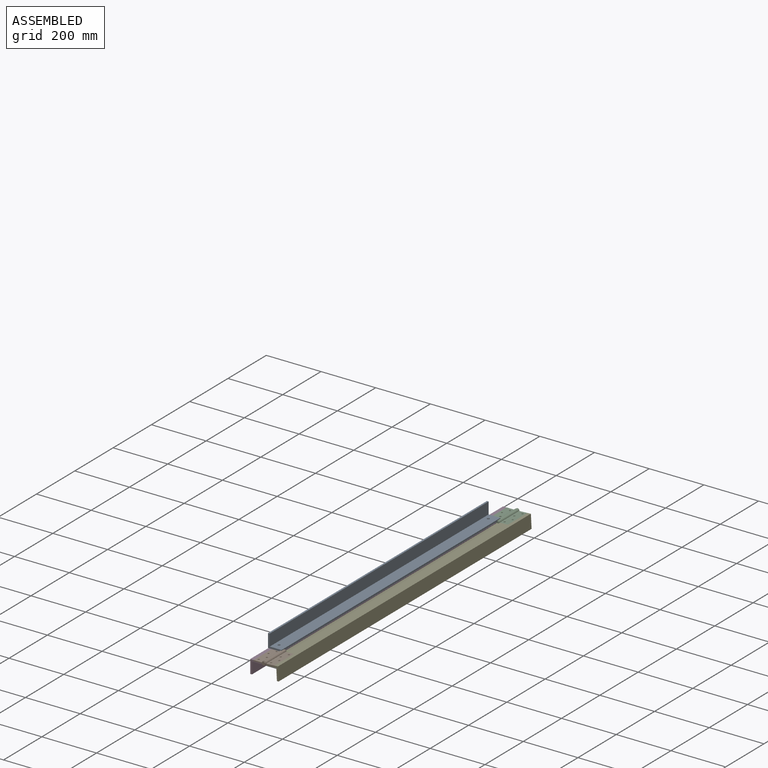
[diagram: assembled view]
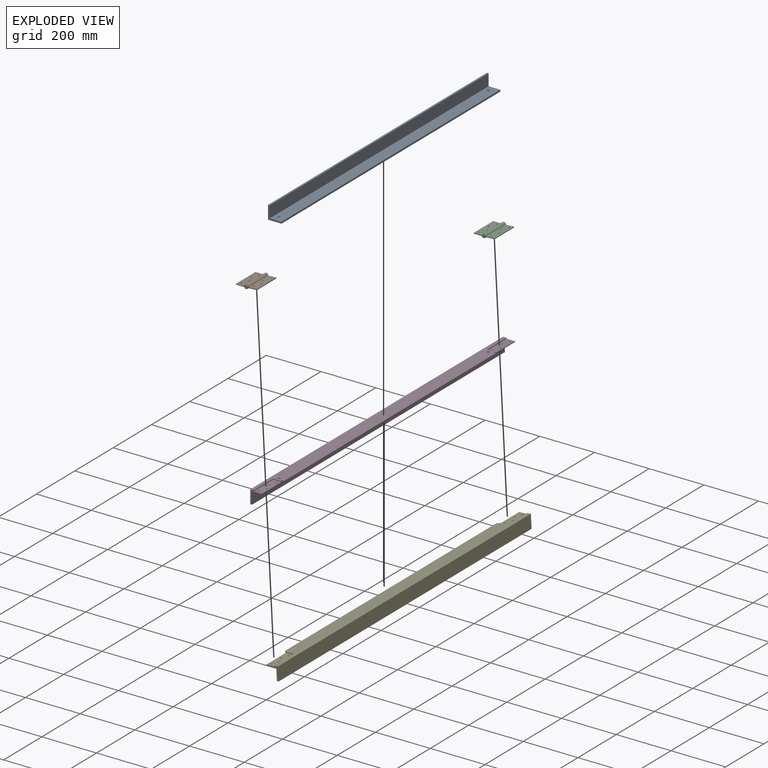
[diagram: exploded view]
GUIDED TOUR — MATED ASSEMBLY WITH SUBASSEMBLIES (Onshape document 305de8d9b51975641aac038a, AutoMate assembly 305de8d9b51975641aac038a_1db2082238140604867633bc_ad173bd3bd15fe4c10e5462b_default)

This assembly has 9 component occurrences arranged in 5 top-level units: 3 individual components plus 2 subassemblies (S0, S1). The tour has two levels: first the top level, where each subassembly is treated as one rigid unit; then each subassembly is toured internally in its own section (nesting deeper than one subassembly level is flattened into its subassembly's section).

Components are labeled P0..P8 across the whole record; subassembly units are labeled S0..S1. A mate is a constraint between two units; its type names the relative motion it leaves free:
  FASTENED — locks the two components together rigidly (no relative motion),
  REVOLUTE — leaves rotation about the listed axis free (a hinge),
  SLIDER — leaves translation along the listed axis free.
Axis/direction vectors are unit vectors and 'through' points are millimeter coordinates, both in the assembly's world frame.

TOP-LEVEL MATES (between units; each subassembly's internal mates are listed in its own section)
  1. FASTENED "Fastened 3": P8 <-> S0, direction (-0.052, 0.000, 0.999) through (71.80, -634.11, 48.72) mm
  2. FASTENED "Fastened 1": S0 <-> P4, direction (0.000, 0.000, -1.000) through (14.52, -659.51, 47.22) mm
  3. SLIDER "Slider 1": P0 <-> P4, axis (0.000, 0.000, -1.000) through (18.21, -557.91, 53.76) mm
  4. FASTENED "Fastened 2": S1 <-> P4, direction (0.000, 0.000, -1.000) through (14.52, 559.69, 47.22) mm
  5. FASTENED "Fastened 4": P8 <-> S1, direction (-0.052, 0.000, 0.999) through (71.80, 635.89, 48.72) mm

TOP-LEVEL ASSEMBLY ORDER
  1. P8 — the base component [order verified]
  2. P4 [order verified]
  3. S0 [order verified]
  4. S1 [order verified]
  5. P0 [order verified]
Order-tag legend:
  [order verified] — this step's position reverses a verified removal order: the component was checked to insert without passing through the ones already placed.

Of the 9 component occurrences, 6 carry the full construction recipe — the FeatureScript program that regenerates the part's solid from scratch; the rest are supplied as boundary geometry only. Each toured unit is shown spotlighted twice — assembled, then exploded with a leader line back to its socket (green = recipe-attached component, orange = geometry-only, blue = subassembly unit; the rest desaturated gray).
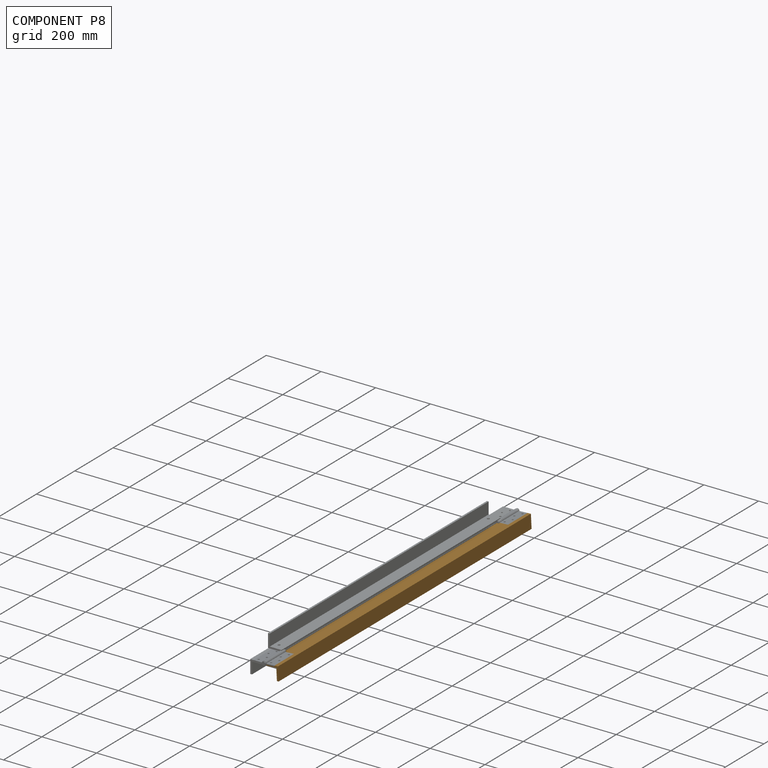
[diagram: component P8 — assembled]
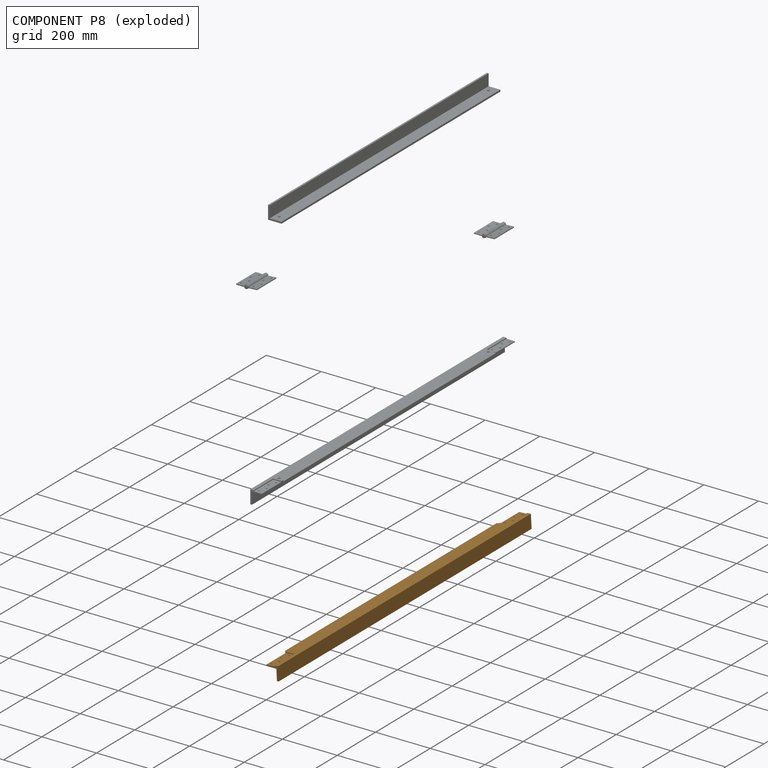
[diagram: component P8 — exploded]
COMPONENT P8 — geometry summary (no construction recipe available for this part):
  bounding box: 1320.8 x 49.2 x 49.2 mm
  B-rep topology: 1 solid, 26 faces, 144 edges
  volume: 743271 mm^3 (23% of its bounding box)
  symmetry: mirror-symmetric across its y mid-plane
Held by: FASTENED mate "Fastened 3" to P1; FASTENED mate "Fastened 4" to P2.
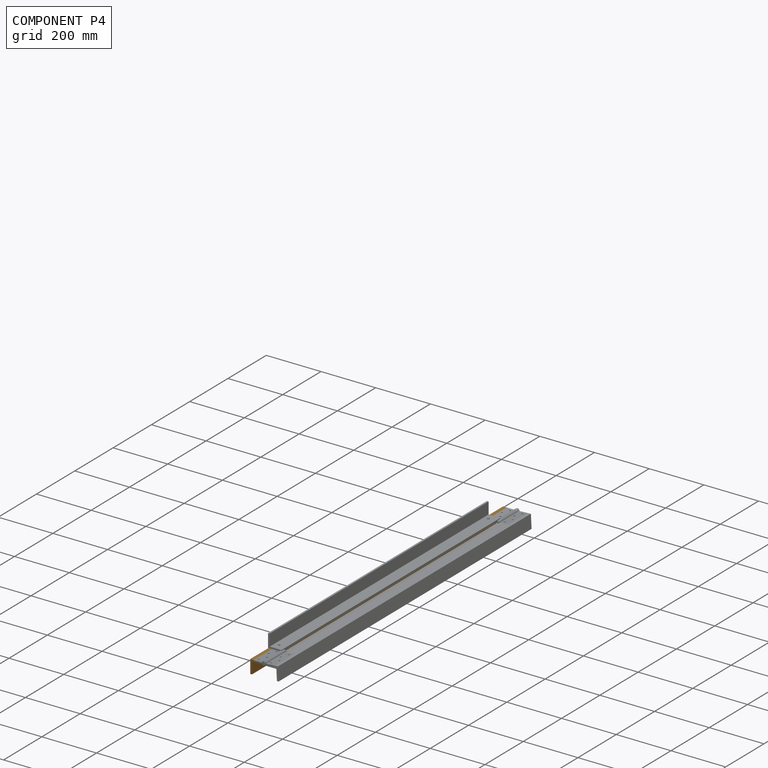
[diagram: component P4 — assembled]
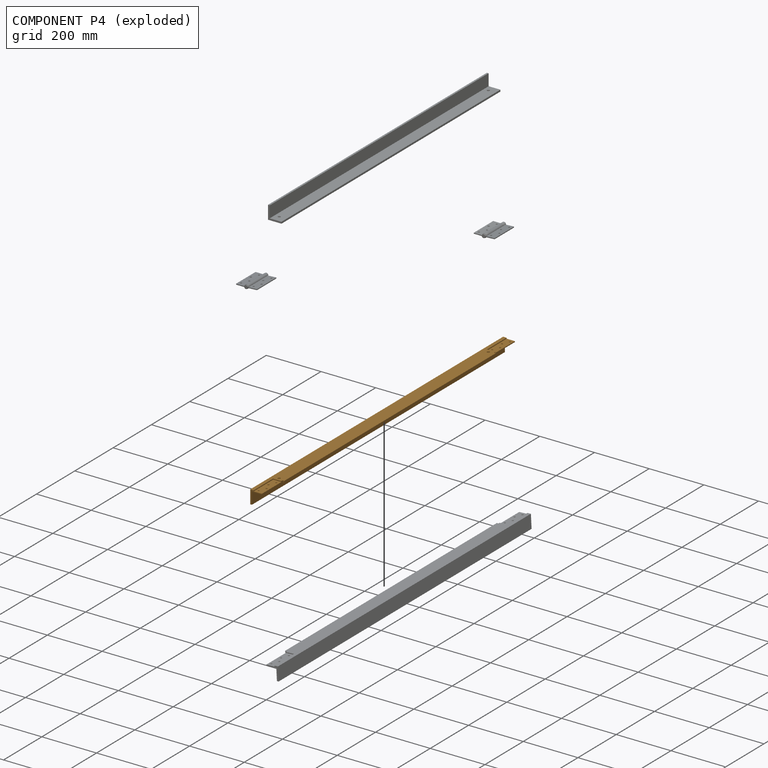
[diagram: component P4 — exploded]
COMPONENT P4 — geometry summary (no construction recipe available for this part):
  bounding box: 1320.8 x 49.2 x 49.2 mm
  B-rep topology: 1 solid, 28 faces, 160 edges
  volume: 742366 mm^3 (23% of its bounding box)
  symmetry: mirror-symmetric across its y mid-plane
Held by: FASTENED mate "Fastened 1" to P1; SLIDER mate "Slider 1" to P0; FASTENED mate "Fastened 2" to P2.
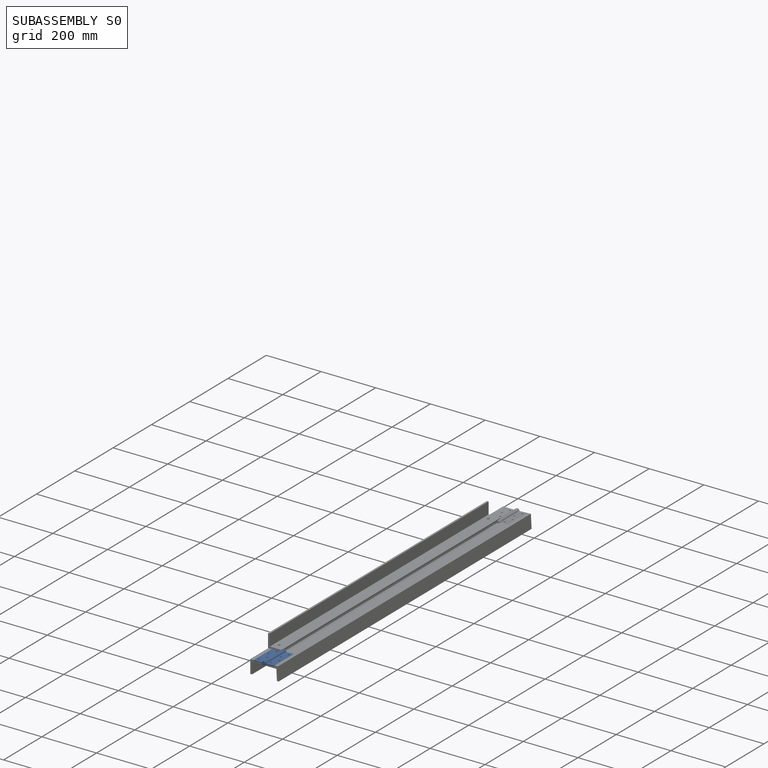
[diagram: subassembly S0 — assembled]
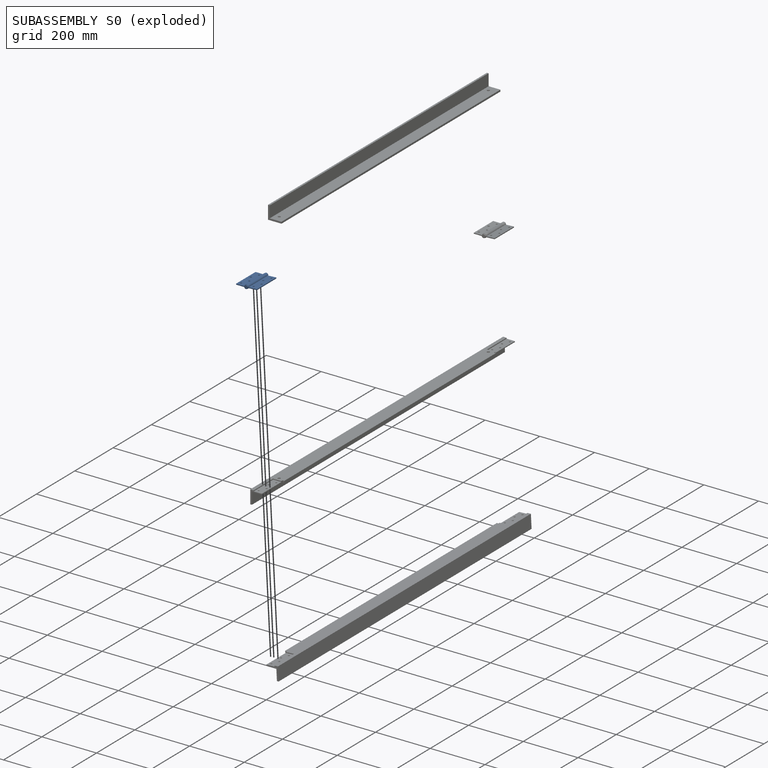
[diagram: subassembly S0 — exploded]
SUBASSEMBLY S0 — 3 components (P1, P5, P7), of which 3 recipe-attached; toured below.
Held by: FASTENED mate "Fastened 3" to P8; FASTENED mate "Fastened 1" to P4.
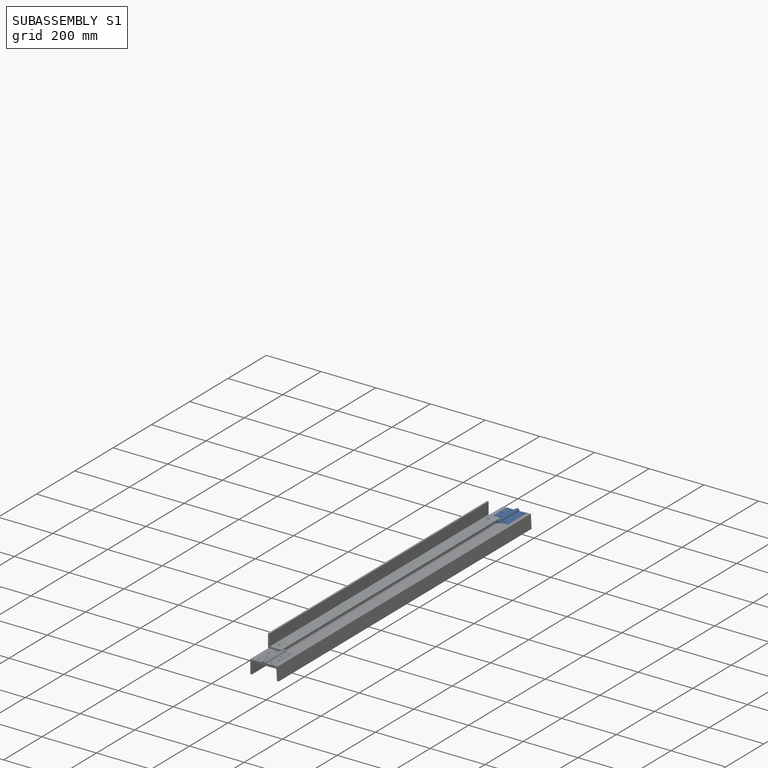
[diagram: subassembly S1 — assembled]
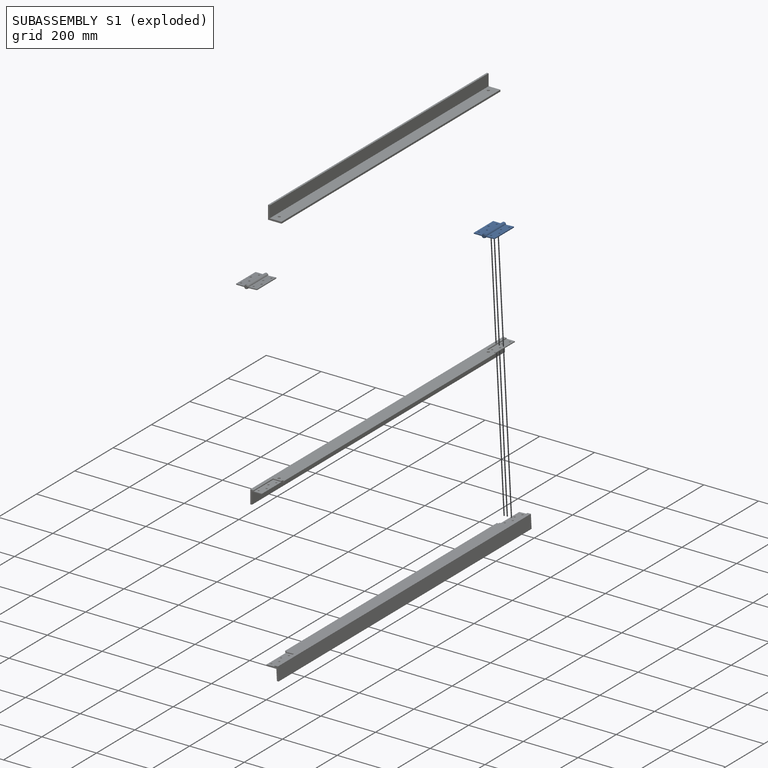
[diagram: subassembly S1 — exploded]
SUBASSEMBLY S1 — 3 components (P2, P3, P6), of which 3 recipe-attached; toured below.
Held by: FASTENED mate "Fastened 2" to P4; FASTENED mate "Fastened 4" to P8.
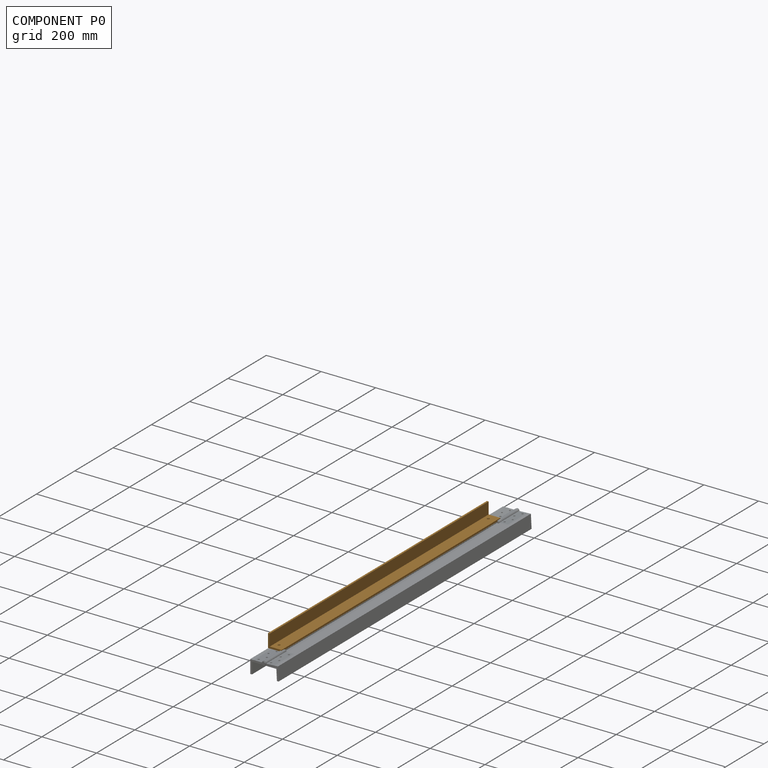
[diagram: component P0 — assembled]
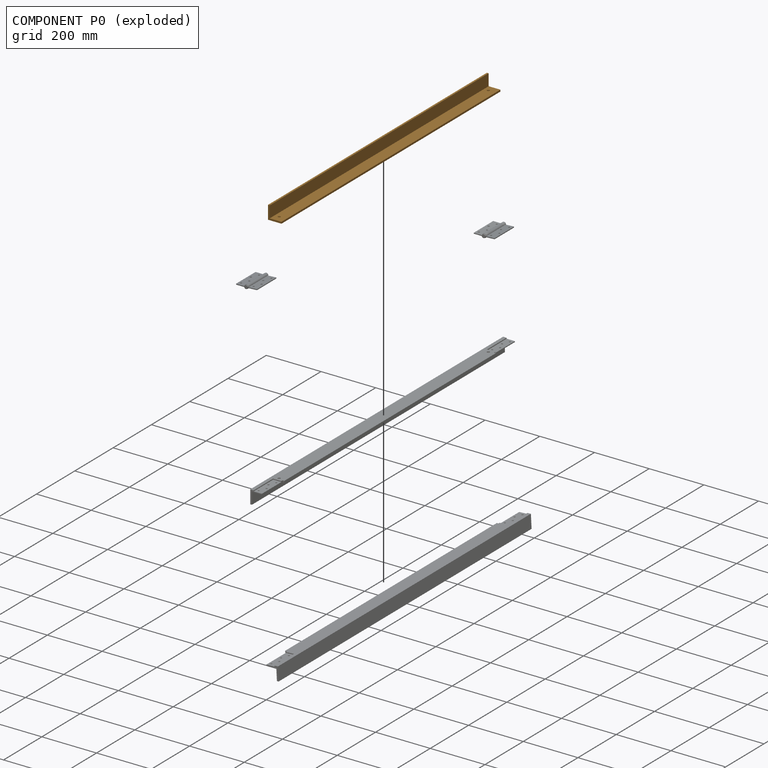
[diagram: component P0 — exploded]
COMPONENT P0 — geometry summary (no construction recipe available for this part):
  bounding box: 1143.0 x 49.2 x 49.2 mm
  B-rep topology: 1 solid, 10 faces, 52 edges
  volume: 667681 mm^3 (24% of its bounding box)
  symmetry: mirror-symmetric across its y mid-plane
Held by: SLIDER mate "Slider 1" to P4.
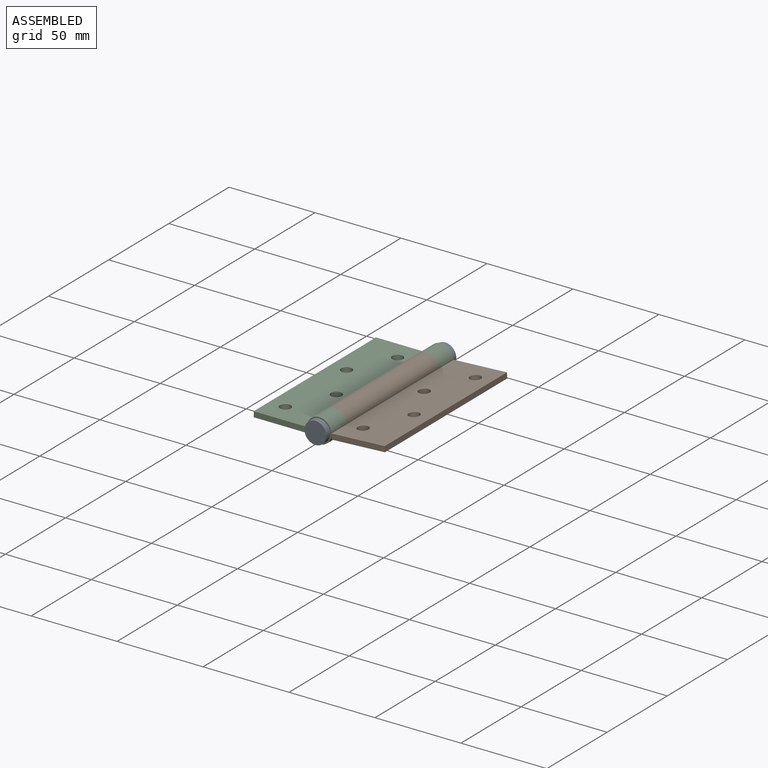
[diagram: subassembly S0 — assembled view]
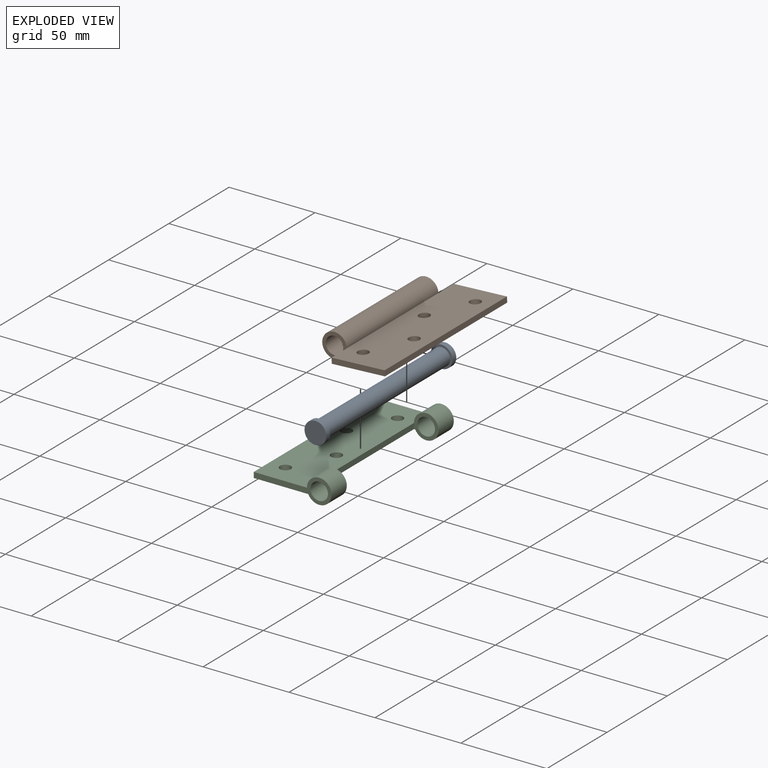
[diagram: subassembly S0 — exploded view]
SUBASSEMBLY S0 TOUR — 3 components, shown here in isolation at its own camera.

INTERNAL MATES
  1. REVOLUTE "Revolute 2": P5 <-> P7, axis (0.000, 1.000, 0.000) through (43.10, -659.51, 50.39) mm
  2. REVOLUTE "Revolute 1": P7 <-> P1, axis (0.000, 1.000, 0.000) through (43.10, -672.21, 50.39) mm
  3. REVOLUTE "Revolute 1": P7 <-> P1, axis (0.000, 1.000, 0.000) through (43.10, -672.21, 50.39) mm
  4. REVOLUTE "Revolute 2": P5 <-> P7, axis (0.000, 1.000, 0.000) through (43.10, -659.51, 50.39) mm

ASSEMBLY ORDER (within the subassembly)
  1. P1 — the base component [order verified]
  2. P7 [order verified]
  3. P5 [order verified]
Order-tag legend:
  [order verified] — this step's position reverses a verified removal order: the component was checked to insert without passing through the ones already placed.
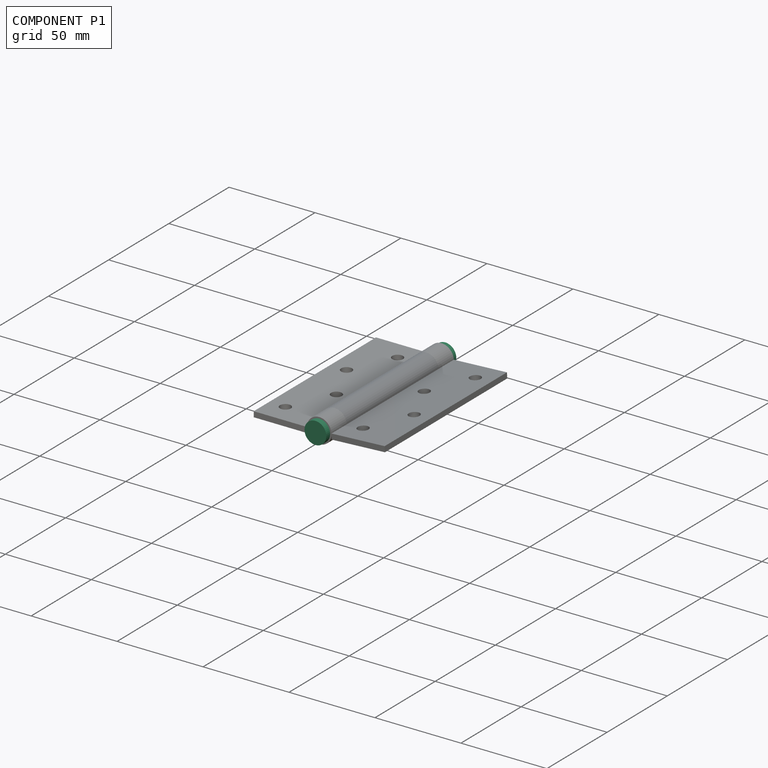
[diagram: component P1 — assembled]
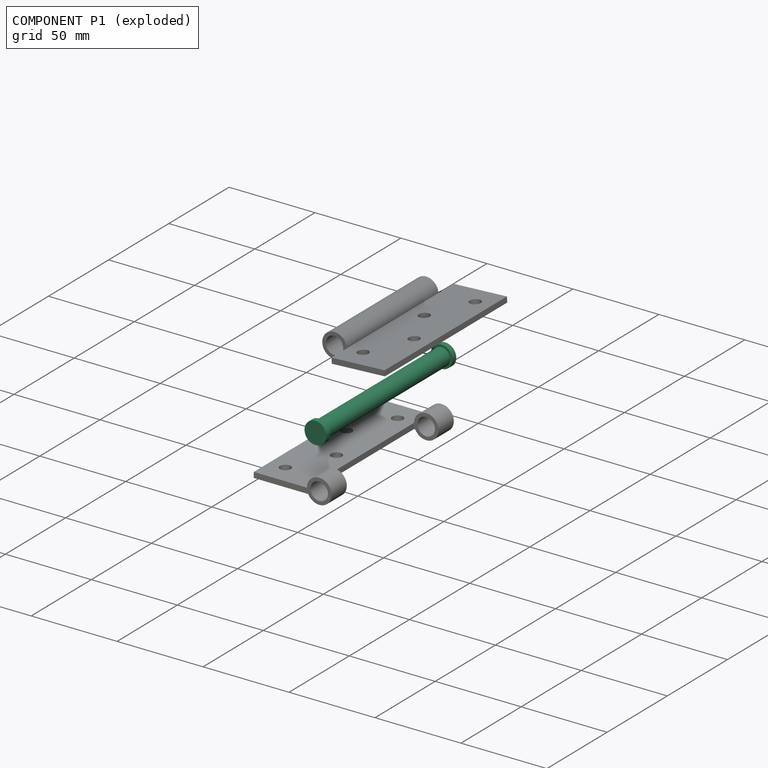
[diagram: component P1 — exploded]
COMPONENT P1 — recipe-attached (CADFS 00823980, mesh-verified: the recipe's output STEP matches this component's geometry to below the mesh-comparison resolution (tessellation chordal tolerance ~0.164 mm)).
Held by: REVOLUTE mate "Revolute 1" to P7; REVOLUTE mate "Revolute 1" to P7.
Construction recipe (FeatureScript — the CAD program that rebuilds this solid; sketch coordinates are in the units given by the * unit suffixes, e.g. mm):

FeatureScript 1511;
import(path : "onshape/std/geometry.fs", version : "1511.0");
import(path : "onshape/std/common.fs", version : "1511.0");
const mm = millimeter;
const VERTEX = EntityType.VERTEX;
const EDGE = EntityType.EDGE;
const FACE = EntityType.FACE;
const BODY = EntityType.BODY;
function v(x, y){return vector(x, y);}
function OD(order){return orderDisambiguation(order);}
function OSD(set){return originalSetDisambiguation(set);}
function TD(topology){return topologyDisambiguation(topology);}
function TDD(query){return trueDependencyDisambiguation(query);}
function sQuery(a, b, c) {return sketchEntityQuery(a, b, c);}

annotation { "Feature Type Name" : "Feature", "Feature Type Description" : "" }
export const myFeature = defineFeature(function(context is Context, id is Id, definition is map)
    precondition{}
    {
        {
            var Q0;
            Q0=qCreatedBy(makeId("Front.planeOp"),FACE);
            var sketch = newSketch(context, id + "F0", { "sketchPlane" : qUnion([Q0])});
            skCircle(sketch, "E0", {"center": v(0, 0) * mm, "radius": 5.08 * mm});
            skSolve(sketch);
        }
        {
            var Q0;
            Q0=makeQuery(id+"F0.imprint","IMPRINT",FACE,{"disambiguationData":[TD([[makeQuery(id+"F0.imprint","IMPRINT",EDGE,{"derivedFrom":sQuery(id+"F0.wireOp",EDGE,"E0")}),1.0]])]});
            extrude(context, id + "F1", {"entities" : qUnion([Q0]), "endBound" : BoundingType.SYMMETRIC, "depth" : 101.6 * mm, "offsetDistance" : 25.4 * mm});
        }
        {
            var Q0;
            Q0=makeQuery(id+"F1.opExtrude","CAP_FACE",FACE,{"disambiguationData":[OSD([sQuery(id+"F0.wireOp",EDGE,"E0")])],"isStart":false});
            var sketch = newSketch(context, id + "F2", { "sketchPlane" : qUnion([Q0])});
            skCircle(sketch, "E1", {"center": v(0, 0) * mm, "radius": 6.35 * mm});
            skSolve(sketch);
        }
        {
            var Q0;
            Q0 = qSketchRegion(id + "F2", true);
            extrude(context, id + "F3", {"entities" : qUnion([Q0]), "operationType" : NewBodyOperationType.ADD, "depth" : 3.17 * mm, "offsetDistance" : 25.4 * mm});
        }
        {
            var Q0;
            Q0=makeQuery(id+"F1.opExtrude","CAP_FACE",FACE,{"disambiguationData":[OSD([sQuery(id+"F0.wireOp",EDGE,"E0")])],"isStart":true});
            var sketch = newSketch(context, id + "F4", { "sketchPlane" : qUnion([Q0])});
            skCircle(sketch, "E2", {"center": v(0, 0) * mm, "radius": 6.35 * mm});
            skSolve(sketch);
        }
        {
            var Q0;
            Q0 = qSketchRegion(id + "F4", true);
            extrude(context, id + "F5", {"entities" : qUnion([Q0]), "operationType" : NewBodyOperationType.ADD, "depth" : 3.17 * mm, "offsetDistance" : 25.4 * mm});
        }
    });
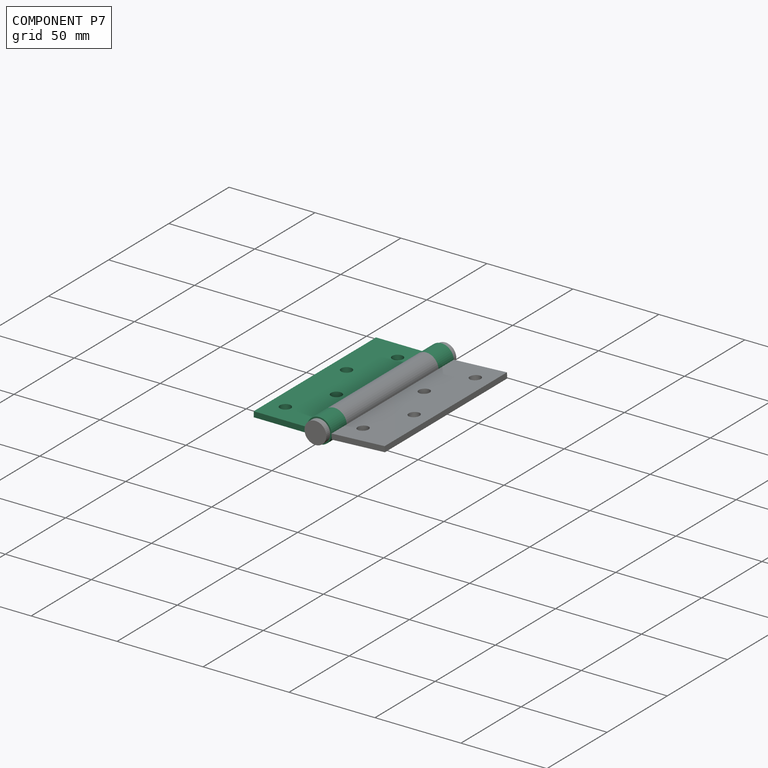
[diagram: component P7 — assembled]
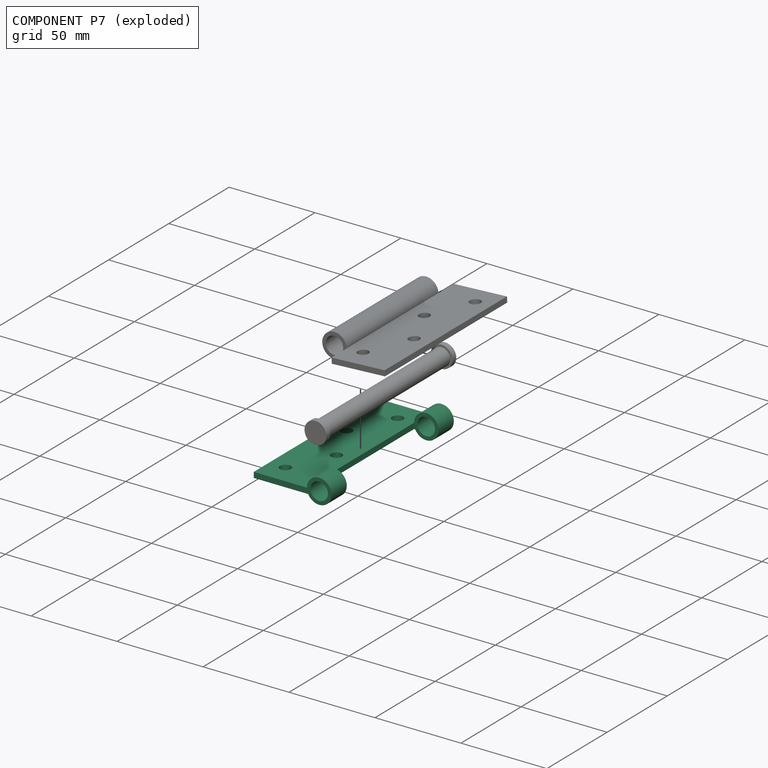
[diagram: component P7 — exploded]
COMPONENT P7 — recipe-attached (CADFS 00823982, mesh-verified: the recipe's output STEP matches this component's geometry to below the mesh-comparison resolution (tessellation chordal tolerance ~0.168 mm)).
Held by: REVOLUTE mate "Revolute 2" to P5; REVOLUTE mate "Revolute 1" to P1; REVOLUTE mate "Revolute 1" to P1; REVOLUTE mate "Revolute 2" to P5.
Construction recipe (FeatureScript — the CAD program that rebuilds this solid; sketch coordinates are in the units given by the * unit suffixes, e.g. mm):

FeatureScript 1511;
import(path : "onshape/std/geometry.fs", version : "1511.0");
import(path : "onshape/std/common.fs", version : "1511.0");
const mm = millimeter;
const VERTEX = EntityType.VERTEX;
const EDGE = EntityType.EDGE;
const FACE = EntityType.FACE;
const BODY = EntityType.BODY;
function v(x, y){return vector(x, y);}
function OD(order){return orderDisambiguation(order);}
function OSD(set){return originalSetDisambiguation(set);}
function TD(topology){return topologyDisambiguation(topology);}
function TDD(query){return trueDependencyDisambiguation(query);}
function sQuery(a, b, c) {return sketchEntityQuery(a, b, c);}

annotation { "Feature Type Name" : "Feature", "Feature Type Description" : "" }
export const myFeature = defineFeature(function(context is Context, id is Id, definition is map)
    precondition{}
    {
        {
            var Q0;
            Q0=qCreatedBy(makeId("Front.planeOp"),FACE);
            var sketch = newSketch(context, id + "F0", { "sketchPlane" : qUnion([Q0])});
            skCircle(sketch, "E0", {"center": v(14.64, 0) * mm, "radius": 7.14 * mm});
            skCircle(sketch, "E1", {"center": v(14.64, 0) * mm, "radius": 5.08 * mm});
            skLineSegment(sketch, "E2.right", {"start": v(-23.46, 0) * mm, "end": v(-23.46, -3.17) * mm});
            skLineSegment(sketch, "E3.trimOffspring", {"start": v(7.5, 0) * mm, "end": v(-23.46, 0) * mm});
            skLineSegment(sketch, "E4", {"start": v(7.5, 0) * mm, "end": v(14.64, 0) * mm, "construction": true});
            skLineSegment(sketch, "E5", {"start": v(14.64, 0) * mm, "end": v(14.64, -3.17) * mm, "construction": true});
            skLineSegment(sketch, "E6.trimOffspring", {"start": v(8.24, -3.17) * mm, "end": v(-23.46, -3.17) * mm});
            skLineSegment(sketch, "E7", {"start": v(8.24, -3.17) * mm, "end": v(14.64, -3.17) * mm, "construction": true});
            skSolve(sketch);
        }
        {
            var Q0;
            Q0=makeQuery(id+"F0.imprint","IMPRINT",FACE,{"disambiguationData":[TD([[makeQuery(id+"F0.imprint","IMPRINT",EDGE,{"derivedFrom":sQuery(id+"F0.wireOp",EDGE,"E2.right")}),1.0]])]});
            var Q1;
            Q1=makeQuery(id+"F0.imprint","IMPRINT",FACE,{"disambiguationData":[TD([[makeQuery(id+"F0.imprint","IMPRINT",EDGE,{"derivedFrom":sQuery(id+"F0.wireOp",EDGE,"E1")}),-1.0]])]});
            extrude(context, id + "F1", {"entities" : qUnion([Q0, Q1]), "endBound" : BoundingType.SYMMETRIC, "depth" : 101.6 * mm, "offsetDistance" : 25.4 * mm});
        }
        {
            var Q0;
            Q0=qCreatedBy(makeId("Top.planeOp"),FACE);
            var sketch = newSketch(context, id + "F2", { "sketchPlane" : qUnion([Q0])});
            skLineSegment(sketch, "E8.bottom", {"start": v(22.96, 38.1) * mm, "end": v(7.5, 38.1) * mm});
            skLineSegment(sketch, "E8.top", {"start": v(22.96, -38.1) * mm, "end": v(7.5, -38.1) * mm});
            skLineSegment(sketch, "E8.left", {"start": v(22.96, 38.1) * mm, "end": v(22.96, -38.1) * mm});
            skLineSegment(sketch, "E8.right", {"start": v(7.5, 38.1) * mm, "end": v(7.5, -38.1) * mm});
            skSolve(sketch);
        }
        {
            var Q0;
            Q0 = qSketchRegion(id + "F2", true);
            extrude(context, id + "F3", {"entities" : qUnion([Q0]), "operationType" : NewBodyOperationType.REMOVE, "endBound" : BoundingType.SYMMETRIC, "oppositeDirection" : true, "depth" : 25.4 * mm, "offsetDistance" : 25.4 * mm});
        }
        {
            var Q0;
            Q0=makeQuery(id+"F1.opExtrude","SWEPT_FACE",FACE,{"disambiguationData":[OSD([sQuery(id+"F0.wireOp",EDGE,"E3.trimOffspring")])]});
            var sketch = newSketch(context, id + "F4", { "sketchPlane" : qUnion([Q0])});
            skCircle(sketch, "E9", {"center": v(-2.03, 38.1) * mm, "radius": 3.18 * mm});
            skCircle(sketch, "E10", {"center": v(-2.03, -12.7) * mm, "radius": 3.18 * mm});
            skCircle(sketch, "E11", {"center": v(-13.93, 12.7) * mm, "radius": 3.18 * mm});
            skCircle(sketch, "E12", {"center": v(-13.93, -38.1) * mm, "radius": 3.18 * mm});
            skSolve(sketch);
        }
        {
            var Q0;
            Q0=sQuery(id+"F4.wireOp",VERTEX,"E9.center");
            var Q1;
            Q1=sQuery(id+"F4.wireOp",VERTEX,"E11.center");
            var Q2;
            Q2=sQuery(id+"F4.wireOp",VERTEX,"E10.center");
            var Q3;
            Q3=sQuery(id+"F4.wireOp",VERTEX,"E12.center");
            var Q4;
            Q4=makeQuery(id+"F1.opExtrude","SWEPT_BODY",BODY,{"disambiguationData":[OSD([sQuery(id+"F0.wireOp",EDGE,"E0"),sQuery(id+"F0.wireOp",EDGE,"E1"),sQuery(id+"F0.wireOp",EDGE,"E2.right"),sQuery(id+"F0.wireOp",EDGE,"E3.trimOffspring"),sQuery(id+"F0.wireOp",EDGE,"E6.trimOffspring")])]});
            hole(context, id + "F5", {"style" : HoleStyle.SIMPLE, "endStyle" : HoleEndStyle.THROUGH, "holeDiameter" : 6.35 * mm, "majorDiameter" : 6.35 * mm, "isTappedThrough" : true, "tappedDepth" : 12.7 * mm, "tapClearance" : 3, "locations" : qUnion([Q0, Q1, Q2, Q3]), "scope" : qUnion([Q4])});
        }
    });
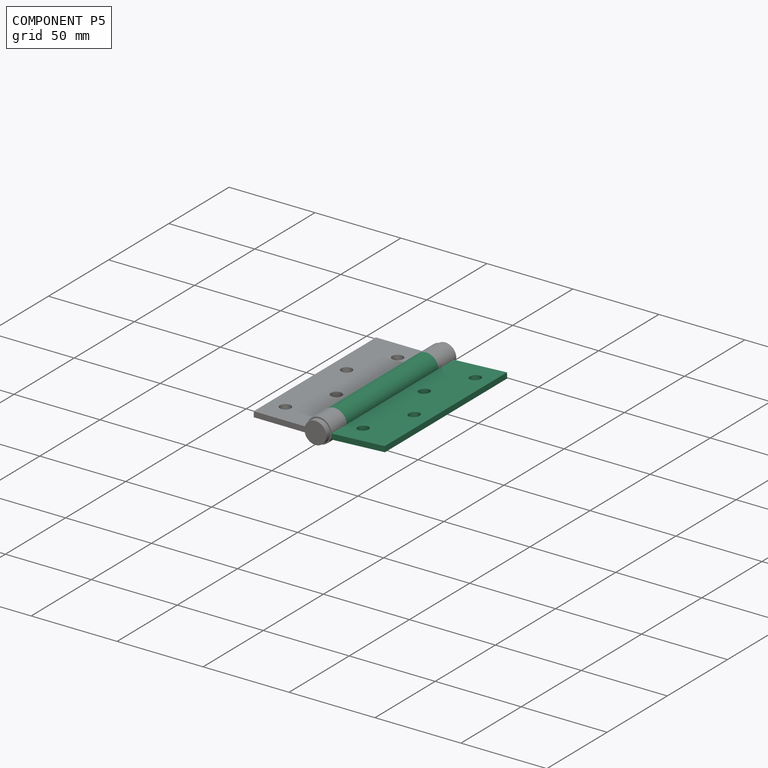
[diagram: component P5 — assembled]
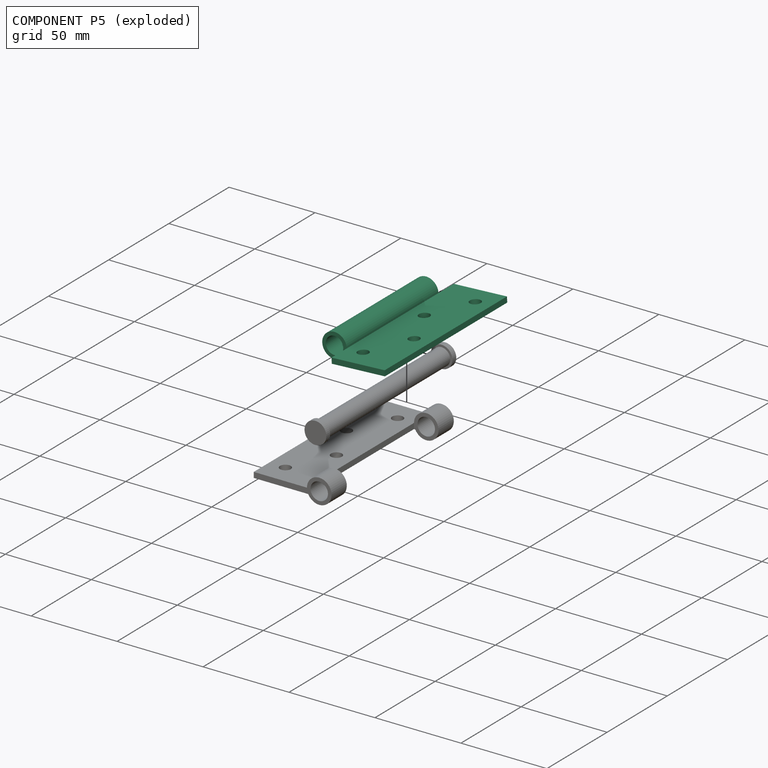
[diagram: component P5 — exploded]
COMPONENT P5 — recipe-attached (CADFS 00823978, mesh-verified: the recipe's output STEP matches this component's geometry to below the mesh-comparison resolution (tessellation chordal tolerance ~0.168 mm)).
Held by: REVOLUTE mate "Revolute 2" to P7; REVOLUTE mate "Revolute 2" to P7.
Construction recipe (FeatureScript — the CAD program that rebuilds this solid; sketch coordinates are in the units given by the * unit suffixes, e.g. mm):

FeatureScript 1511;
import(path : "onshape/std/geometry.fs", version : "1511.0");
import(path : "onshape/std/common.fs", version : "1511.0");
const mm = millimeter;
const VERTEX = EntityType.VERTEX;
const EDGE = EntityType.EDGE;
const FACE = EntityType.FACE;
const BODY = EntityType.BODY;
function v(x, y){return vector(x, y);}
function OD(order){return orderDisambiguation(order);}
function OSD(set){return originalSetDisambiguation(set);}
function TD(topology){return topologyDisambiguation(topology);}
function TDD(query){return trueDependencyDisambiguation(query);}
function sQuery(a, b, c) {return sketchEntityQuery(a, b, c);}

annotation { "Feature Type Name" : "Feature", "Feature Type Description" : "" }
export const myFeature = defineFeature(function(context is Context, id is Id, definition is map)
    precondition{}
    {
        {
            var Q0;
            Q0=qCreatedBy(makeId("Front.planeOp"),FACE);
            var sketch = newSketch(context, id + "F0", { "sketchPlane" : qUnion([Q0])});
            skLineSegment(sketch, "E0.MirrorCS", {"start": v(7.14, 3.17) * mm, "end": v(38.1, 3.17) * mm});
            skLineSegment(sketch, "E1.MirrorCS", {"start": v(6.4, 0) * mm, "end": v(38.1, 0) * mm});
            skLineSegment(sketch, "E2.MirrorCS", {"start": v(38.1, 3.17) * mm, "end": v(38.1, 0) * mm});
            skCircle(sketch, "E3.MirrorC", {"center": v(0, 3.17) * mm, "radius": 7.14 * mm});
            skCircle(sketch, "E4.MirrorC", {"center": v(0, 3.17) * mm, "radius": 5.08 * mm});
            skLineSegment(sketch, "E5.MirrorCS", {"start": v(7.14, 3.17) * mm, "end": v(0, 3.17) * mm, "construction": true});
            skLineSegment(sketch, "E6.MirrorCS", {"start": v(0, 3.17) * mm, "end": v(0, 0) * mm, "construction": true});
            skLineSegment(sketch, "E7.MirrorCS", {"start": v(6.4, 0) * mm, "end": v(0, 0) * mm, "construction": true});
            skSolve(sketch);
        }
        {
            var Q0;
            Q0 = qSketchRegion(id + "F0", true);
            extrude(context, id + "F1", {"entities" : qUnion([Q0]), "endBound" : BoundingType.SYMMETRIC, "depth" : 101.6 * mm, "offsetDistance" : 25.4 * mm});
        }
        {
            var Q0;
            Q0=qCreatedBy(makeId("Top.planeOp"),FACE);
            var sketch = newSketch(context, id + "F2", { "sketchPlane" : qUnion([Q0])});
            skLineSegment(sketch, "E8.bottom", {"start": v(7.14, 38.1) * mm, "end": v(-7.26, 38.1) * mm});
            skLineSegment(sketch, "E8.top", {"start": v(7.14, 50.8) * mm, "end": v(-7.26, 50.8) * mm});
            skLineSegment(sketch, "E8.left", {"start": v(7.14, 38.1) * mm, "end": v(7.14, 50.8) * mm});
            skLineSegment(sketch, "E8.right", {"start": v(-7.26, 38.1) * mm, "end": v(-7.26, 50.8) * mm});
            skLineSegment(sketch, "E9.bottom", {"start": v(7.14, -38.1) * mm, "end": v(-7.26, -38.1) * mm});
            skLineSegment(sketch, "E9.top", {"start": v(7.14, -50.8) * mm, "end": v(-7.26, -50.8) * mm});
            skLineSegment(sketch, "E9.left", {"start": v(7.14, -38.1) * mm, "end": v(7.14, -50.8) * mm});
            skLineSegment(sketch, "E9.right", {"start": v(-7.26, -38.1) * mm, "end": v(-7.26, -50.8) * mm});
            skSolve(sketch);
        }
        {
            var Q0;
            Q0 = qSketchRegion(id + "F2", true);
            extrude(context, id + "F3", {"entities" : qUnion([Q0]), "operationType" : NewBodyOperationType.REMOVE, "endBound" : BoundingType.SYMMETRIC, "oppositeDirection" : true, "depth" : 25.4 * mm, "offsetDistance" : 25.4 * mm});
        }
        {
            var Q0;
            Q0=makeQuery(id+"F1.opExtrude","SWEPT_FACE",FACE,{"disambiguationData":[OSD([sQuery(id+"F0.wireOp",EDGE,"E0.MirrorCS")])]});
            var sketch = newSketch(context, id + "F4", { "sketchPlane" : qUnion([Q0])});
            skCircle(sketch, "E10", {"center": v(28.58, 38.1) * mm, "radius": 3.18 * mm});
            skCircle(sketch, "E11", {"center": v(28.58, -12.7) * mm, "radius": 3.18 * mm});
            skCircle(sketch, "E12", {"center": v(16.67, 12.7) * mm, "radius": 3.18 * mm});
            skCircle(sketch, "E13", {"center": v(16.67, -38.1) * mm, "radius": 3.18 * mm});
            skSolve(sketch);
        }
        {
            var Q0;
            Q0=sQuery(id+"F4.wireOp",VERTEX,"E10.center");
            var Q1;
            Q1=sQuery(id+"F4.wireOp",VERTEX,"E12.center");
            var Q2;
            Q2=sQuery(id+"F4.wireOp",VERTEX,"E11.center");
            var Q3;
            Q3=sQuery(id+"F4.wireOp",VERTEX,"E13.center");
            var Q4;
            Q4=makeQuery(id+"F1.opExtrude","SWEPT_BODY",BODY,{"disambiguationData":[OSD([sQuery(id+"F0.wireOp",EDGE,"E0.MirrorCS"),sQuery(id+"F0.wireOp",EDGE,"E1.MirrorCS"),sQuery(id+"F0.wireOp",EDGE,"E2.MirrorCS"),sQuery(id+"F0.wireOp",EDGE,"E3.MirrorC"),sQuery(id+"F0.wireOp",EDGE,"E4.MirrorC")])]});
            hole(context, id + "F5", {"style" : HoleStyle.SIMPLE, "endStyle" : HoleEndStyle.THROUGH, "holeDiameter" : 6.35 * mm, "majorDiameter" : 6.35 * mm, "isTappedThrough" : true, "tappedDepth" : 12.7 * mm, "tapClearance" : 3, "locations" : qUnion([Q0, Q1, Q2, Q3]), "scope" : qUnion([Q4])});
        }
    });
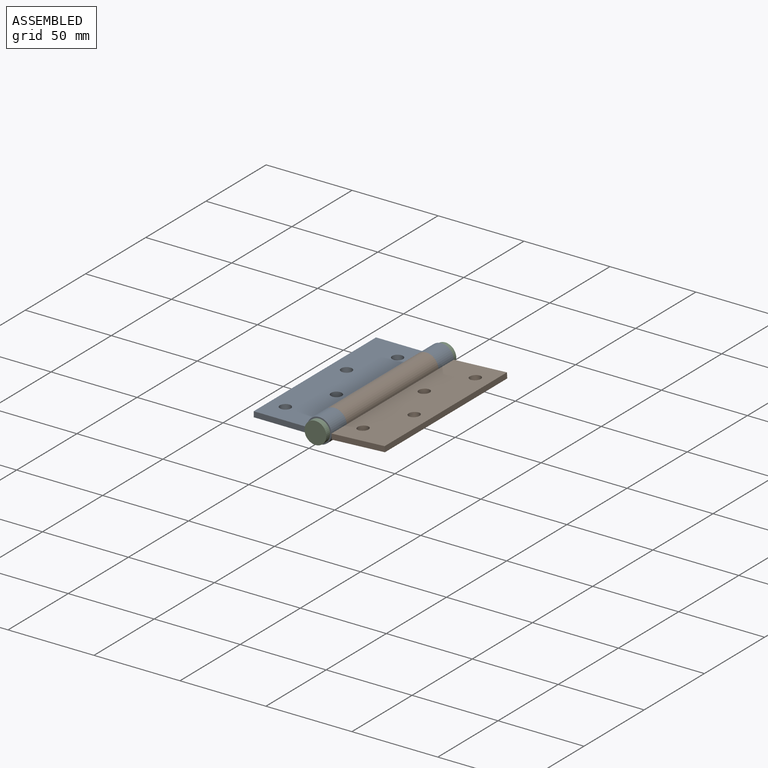
[diagram: subassembly S1 — assembled view]
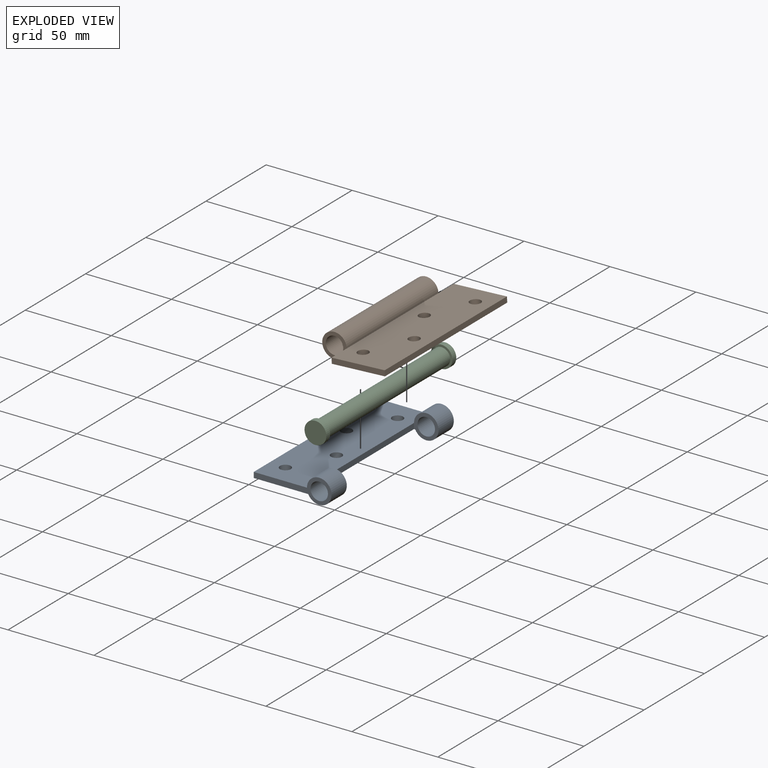
[diagram: subassembly S1 — exploded view]
SUBASSEMBLY S1 TOUR — 3 components, shown here in isolation at its own camera.

INTERNAL MATES
  1. REVOLUTE "Revolute 2": P3 <-> P2, axis (0.000, 1.000, 0.000) through (43.10, 559.69, 50.39) mm
  2. REVOLUTE "Revolute 1": P2 <-> P6, axis (0.000, 1.000, 0.000) through (43.10, 546.99, 50.39) mm
  3. REVOLUTE "Revolute 1": P2 <-> P6, axis (0.000, 1.000, 0.000) through (43.10, 546.99, 50.39) mm
  4. REVOLUTE "Revolute 2": P3 <-> P2, axis (0.000, 1.000, 0.000) through (43.10, 559.69, 50.39) mm

ASSEMBLY ORDER (within the subassembly)
  1. P6 — the base component [order verified]
  2. P3 [order verified]
  3. P2 [order verified]
Order-tag legend:
  [order verified] — this step's position reverses a verified removal order: the component was checked to insert without passing through the ones already placed.
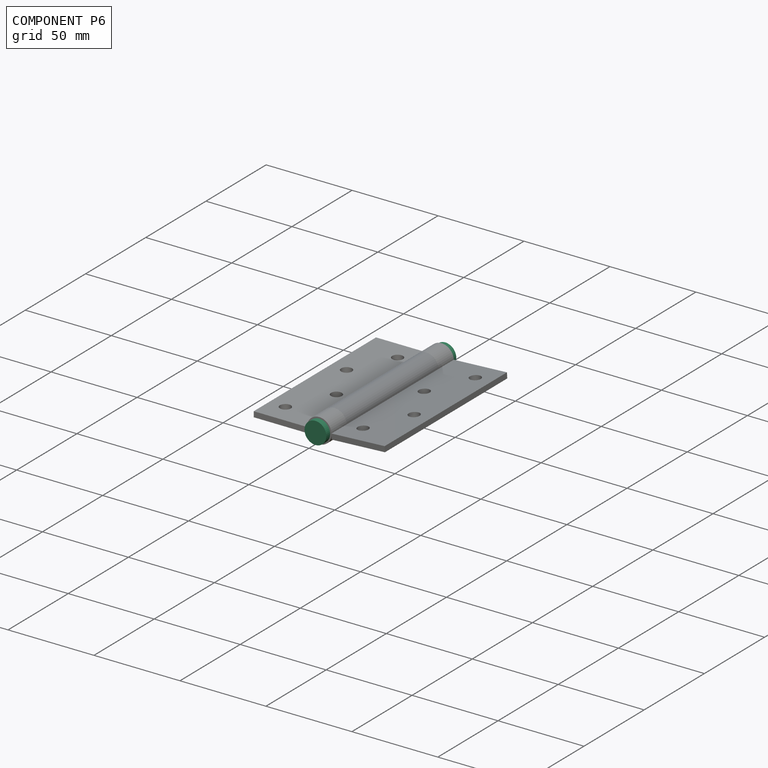
[diagram: component P6 — assembled]
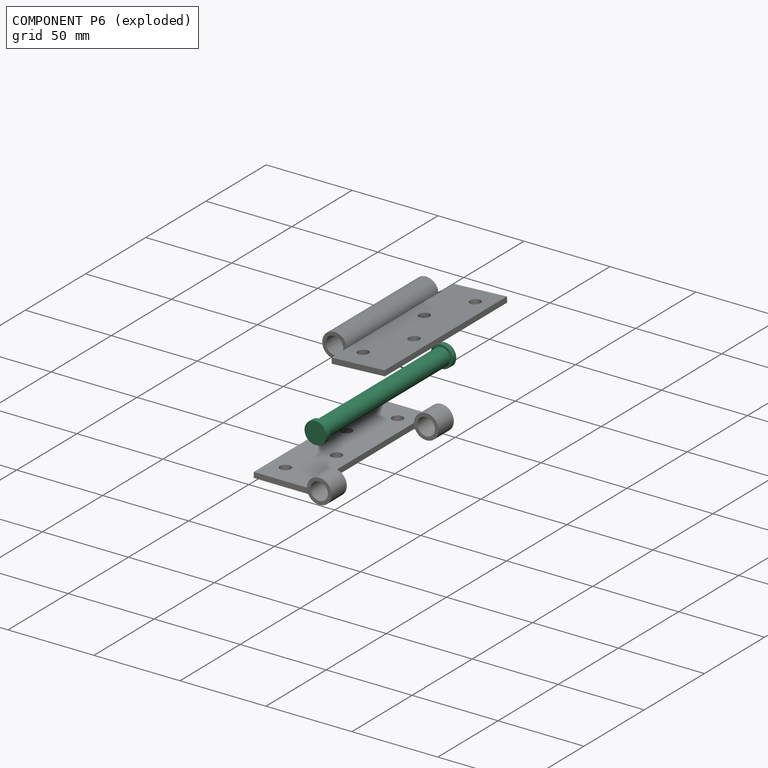
[diagram: component P6 — exploded]
COMPONENT P6 — recipe-attached (CADFS 00823980, mesh-verified: the recipe's output STEP matches this component's geometry to below the mesh-comparison resolution (tessellation chordal tolerance ~0.164 mm)).
Held by: REVOLUTE mate "Revolute 1" to P2; REVOLUTE mate "Revolute 1" to P2.
Construction recipe (FeatureScript — the CAD program that rebuilds this solid; sketch coordinates are in the units given by the * unit suffixes, e.g. mm):

FeatureScript 1511;
import(path : "onshape/std/geometry.fs", version : "1511.0");
import(path : "onshape/std/common.fs", version : "1511.0");
const mm = millimeter;
const VERTEX = EntityType.VERTEX;
const EDGE = EntityType.EDGE;
const FACE = EntityType.FACE;
const BODY = EntityType.BODY;
function v(x, y){return vector(x, y);}
function OD(order){return orderDisambiguation(order);}
function OSD(set){return originalSetDisambiguation(set);}
function TD(topology){return topologyDisambiguation(topology);}
function TDD(query){return trueDependencyDisambiguation(query);}
function sQuery(a, b, c) {return sketchEntityQuery(a, b, c);}

annotation { "Feature Type Name" : "Feature", "Feature Type Description" : "" }
export const myFeature = defineFeature(function(context is Context, id is Id, definition is map)
    precondition{}
    {
        {
            var Q0;
            Q0=qCreatedBy(makeId("Front.planeOp"),FACE);
            var sketch = newSketch(context, id + "F0", { "sketchPlane" : qUnion([Q0])});
            skCircle(sketch, "E0", {"center": v(0, 0) * mm, "radius": 5.08 * mm});
            skSolve(sketch);
        }
        {
            var Q0;
            Q0=makeQuery(id+"F0.imprint","IMPRINT",FACE,{"disambiguationData":[TD([[makeQuery(id+"F0.imprint","IMPRINT",EDGE,{"derivedFrom":sQuery(id+"F0.wireOp",EDGE,"E0")}),1.0]])]});
            extrude(context, id + "F1", {"entities" : qUnion([Q0]), "endBound" : BoundingType.SYMMETRIC, "depth" : 101.6 * mm, "offsetDistance" : 25.4 * mm});
        }
        {
            var Q0;
            Q0=makeQuery(id+"F1.opExtrude","CAP_FACE",FACE,{"disambiguationData":[OSD([sQuery(id+"F0.wireOp",EDGE,"E0")])],"isStart":false});
            var sketch = newSketch(context, id + "F2", { "sketchPlane" : qUnion([Q0])});
            skCircle(sketch, "E1", {"center": v(0, 0) * mm, "radius": 6.35 * mm});
            skSolve(sketch);
        }
        {
            var Q0;
            Q0 = qSketchRegion(id + "F2", true);
            extrude(context, id + "F3", {"entities" : qUnion([Q0]), "operationType" : NewBodyOperationType.ADD, "depth" : 3.17 * mm, "offsetDistance" : 25.4 * mm});
        }
        {
            var Q0;
            Q0=makeQuery(id+"F1.opExtrude","CAP_FACE",FACE,{"disambiguationData":[OSD([sQuery(id+"F0.wireOp",EDGE,"E0")])],"isStart":true});
            var sketch = newSketch(context, id + "F4", { "sketchPlane" : qUnion([Q0])});
            skCircle(sketch, "E2", {"center": v(0, 0) * mm, "radius": 6.35 * mm});
            skSolve(sketch);
        }
        {
            var Q0;
            Q0 = qSketchRegion(id + "F4", true);
            extrude(context, id + "F5", {"entities" : qUnion([Q0]), "operationType" : NewBodyOperationType.ADD, "depth" : 3.17 * mm, "offsetDistance" : 25.4 * mm});
        }
    });
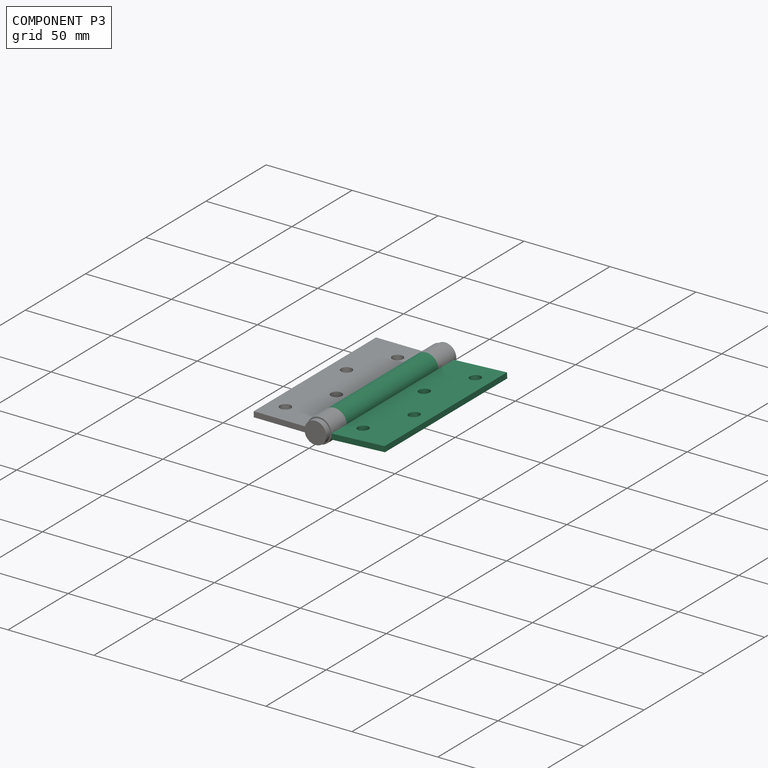
[diagram: component P3 — assembled]
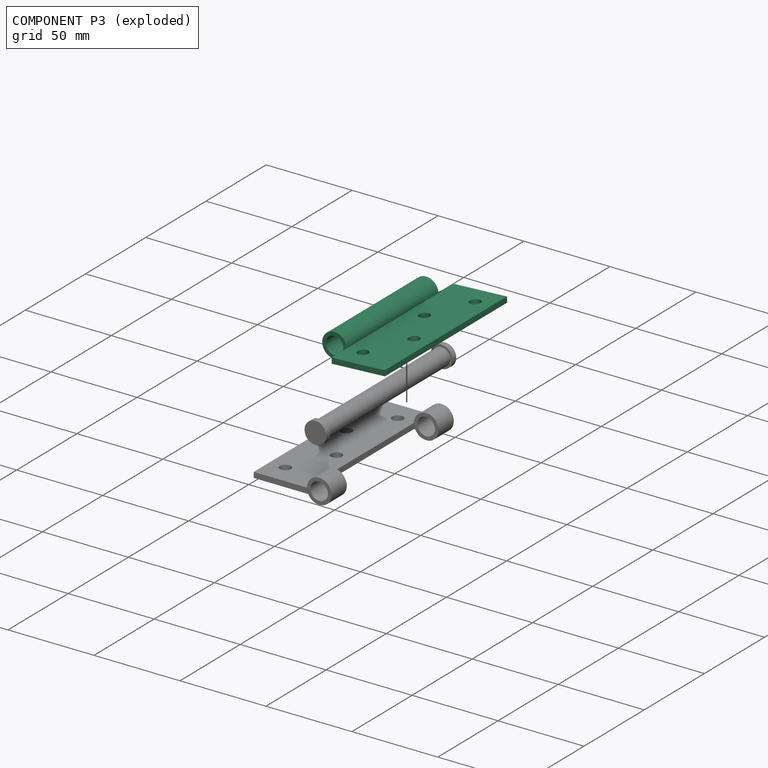
[diagram: component P3 — exploded]
COMPONENT P3 — recipe-attached (CADFS 00823978, mesh-verified: the recipe's output STEP matches this component's geometry to below the mesh-comparison resolution (tessellation chordal tolerance ~0.168 mm)).
Held by: REVOLUTE mate "Revolute 2" to P2; REVOLUTE mate "Revolute 2" to P2.
Construction recipe (FeatureScript — the CAD program that rebuilds this solid; sketch coordinates are in the units given by the * unit suffixes, e.g. mm):

FeatureScript 1511;
import(path : "onshape/std/geometry.fs", version : "1511.0");
import(path : "onshape/std/common.fs", version : "1511.0");
const mm = millimeter;
const VERTEX = EntityType.VERTEX;
const EDGE = EntityType.EDGE;
const FACE = EntityType.FACE;
const BODY = EntityType.BODY;
function v(x, y){return vector(x, y);}
function OD(order){return orderDisambiguation(order);}
function OSD(set){return originalSetDisambiguation(set);}
function TD(topology){return topologyDisambiguation(topology);}
function TDD(query){return trueDependencyDisambiguation(query);}
function sQuery(a, b, c) {return sketchEntityQuery(a, b, c);}

annotation { "Feature Type Name" : "Feature", "Feature Type Description" : "" }
export const myFeature = defineFeature(function(context is Context, id is Id, definition is map)
    precondition{}
    {
        {
            var Q0;
            Q0=qCreatedBy(makeId("Front.planeOp"),FACE);
            var sketch = newSketch(context, id + "F0", { "sketchPlane" : qUnion([Q0])});
            skLineSegment(sketch, "E0.MirrorCS", {"start": v(7.14, 3.17) * mm, "end": v(38.1, 3.17) * mm});
            skLineSegment(sketch, "E1.MirrorCS", {"start": v(6.4, 0) * mm, "end": v(38.1, 0) * mm});
            skLineSegment(sketch, "E2.MirrorCS", {"start": v(38.1, 3.17) * mm, "end": v(38.1, 0) * mm});
            skCircle(sketch, "E3.MirrorC", {"center": v(0, 3.17) * mm, "radius": 7.14 * mm});
            skCircle(sketch, "E4.MirrorC", {"center": v(0, 3.17) * mm, "radius": 5.08 * mm});
            skLineSegment(sketch, "E5.MirrorCS", {"start": v(7.14, 3.17) * mm, "end": v(0, 3.17) * mm, "construction": true});
            skLineSegment(sketch, "E6.MirrorCS", {"start": v(0, 3.17) * mm, "end": v(0, 0) * mm, "construction": true});
            skLineSegment(sketch, "E7.MirrorCS", {"start": v(6.4, 0) * mm, "end": v(0, 0) * mm, "construction": true});
            skSolve(sketch);
        }
        {
            var Q0;
            Q0 = qSketchRegion(id + "F0", true);
            extrude(context, id + "F1", {"entities" : qUnion([Q0]), "endBound" : BoundingType.SYMMETRIC, "depth" : 101.6 * mm, "offsetDistance" : 25.4 * mm});
        }
        {
            var Q0;
            Q0=qCreatedBy(makeId("Top.planeOp"),FACE);
            var sketch = newSketch(context, id + "F2", { "sketchPlane" : qUnion([Q0])});
            skLineSegment(sketch, "E8.bottom", {"start": v(7.14, 38.1) * mm, "end": v(-7.26, 38.1) * mm});
            skLineSegment(sketch, "E8.top", {"start": v(7.14, 50.8) * mm, "end": v(-7.26, 50.8) * mm});
            skLineSegment(sketch, "E8.left", {"start": v(7.14, 38.1) * mm, "end": v(7.14, 50.8) * mm});
            skLineSegment(sketch, "E8.right", {"start": v(-7.26, 38.1) * mm, "end": v(-7.26, 50.8) * mm});
            skLineSegment(sketch, "E9.bottom", {"start": v(7.14, -38.1) * mm, "end": v(-7.26, -38.1) * mm});
            skLineSegment(sketch, "E9.top", {"start": v(7.14, -50.8) * mm, "end": v(-7.26, -50.8) * mm});
            skLineSegment(sketch, "E9.left", {"start": v(7.14, -38.1) * mm, "end": v(7.14, -50.8) * mm});
            skLineSegment(sketch, "E9.right", {"start": v(-7.26, -38.1) * mm, "end": v(-7.26, -50.8) * mm});
            skSolve(sketch);
        }
        {
            var Q0;
            Q0 = qSketchRegion(id + "F2", true);
            extrude(context, id + "F3", {"entities" : qUnion([Q0]), "operationType" : NewBodyOperationType.REMOVE, "endBound" : BoundingType.SYMMETRIC, "oppositeDirection" : true, "depth" : 25.4 * mm, "offsetDistance" : 25.4 * mm});
        }
        {
            var Q0;
            Q0=makeQuery(id+"F1.opExtrude","SWEPT_FACE",FACE,{"disambiguationData":[OSD([sQuery(id+"F0.wireOp",EDGE,"E0.MirrorCS")])]});
            var sketch = newSketch(context, id + "F4", { "sketchPlane" : qUnion([Q0])});
            skCircle(sketch, "E10", {"center": v(28.58, 38.1) * mm, "radius": 3.18 * mm});
            skCircle(sketch, "E11", {"center": v(28.58, -12.7) * mm, "radius": 3.18 * mm});
            skCircle(sketch, "E12", {"center": v(16.67, 12.7) * mm, "radius": 3.18 * mm});
            skCircle(sketch, "E13", {"center": v(16.67, -38.1) * mm, "radius": 3.18 * mm});
            skSolve(sketch);
        }
        {
            var Q0;
            Q0=sQuery(id+"F4.wireOp",VERTEX,"E10.center");
            var Q1;
            Q1=sQuery(id+"F4.wireOp",VERTEX,"E12.center");
            var Q2;
            Q2=sQuery(id+"F4.wireOp",VERTEX,"E11.center");
            var Q3;
            Q3=sQuery(id+"F4.wireOp",VERTEX,"E13.center");
            var Q4;
            Q4=makeQuery(id+"F1.opExtrude","SWEPT_BODY",BODY,{"disambiguationData":[OSD([sQuery(id+"F0.wireOp",EDGE,"E0.MirrorCS"),sQuery(id+"F0.wireOp",EDGE,"E1.MirrorCS"),sQuery(id+"F0.wireOp",EDGE,"E2.MirrorCS"),sQuery(id+"F0.wireOp",EDGE,"E3.MirrorC"),sQuery(id+"F0.wireOp",EDGE,"E4.MirrorC")])]});
            hole(context, id + "F5", {"style" : HoleStyle.SIMPLE, "endStyle" : HoleEndStyle.THROUGH, "holeDiameter" : 6.35 * mm, "majorDiameter" : 6.35 * mm, "isTappedThrough" : true, "tappedDepth" : 12.7 * mm, "tapClearance" : 3, "locations" : qUnion([Q0, Q1, Q2, Q3]), "scope" : qUnion([Q4])});
        }
    });
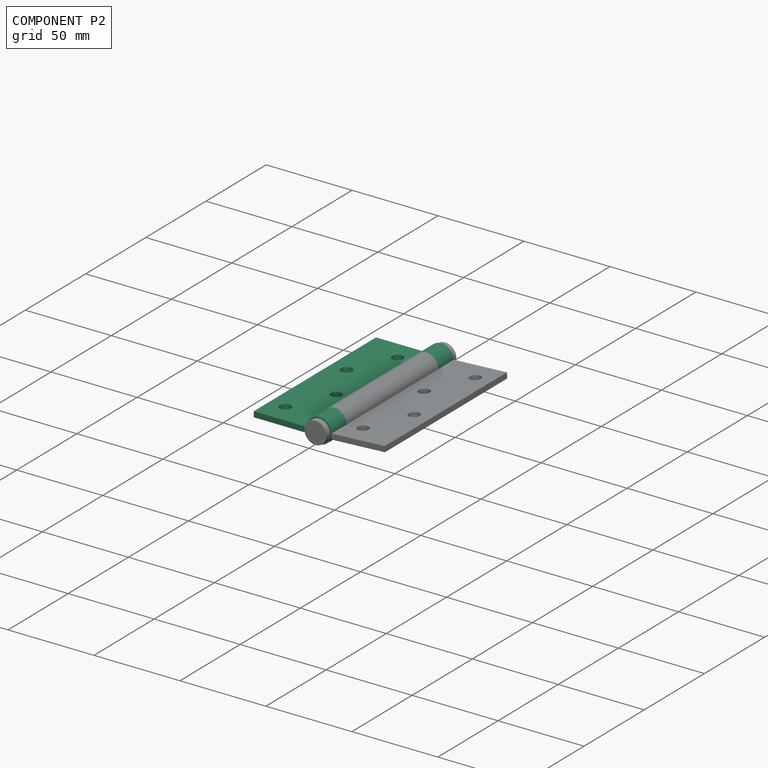
[diagram: component P2 — assembled]
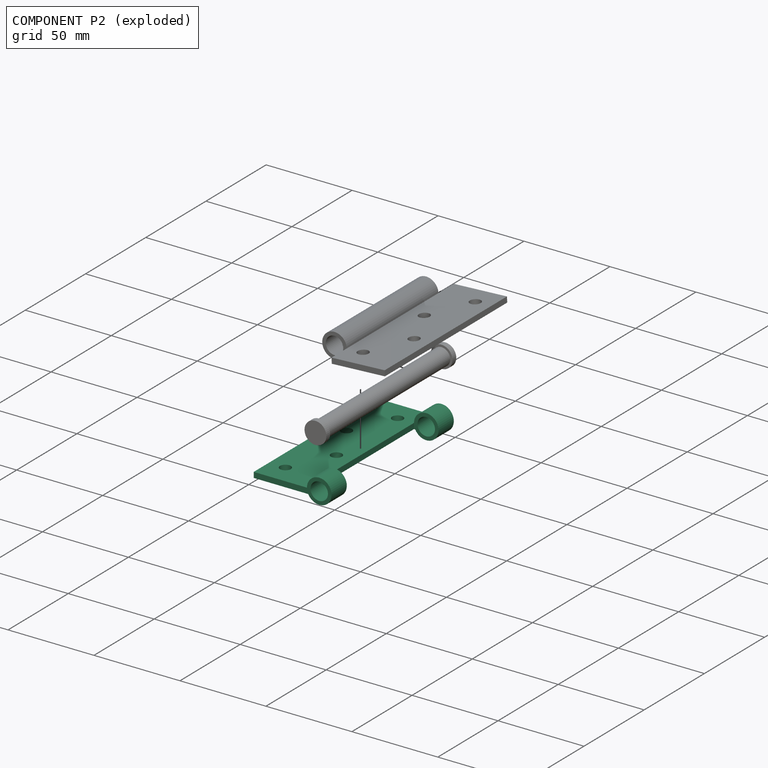
[diagram: component P2 — exploded]
COMPONENT P2 — recipe-attached (CADFS 00823982, mesh-verified: the recipe's output STEP matches this component's geometry to below the mesh-comparison resolution (tessellation chordal tolerance ~0.168 mm)).
Held by: REVOLUTE mate "Revolute 2" to P3; REVOLUTE mate "Revolute 1" to P6; REVOLUTE mate "Revolute 1" to P6; REVOLUTE mate "Revolute 2" to P3.
Construction recipe (FeatureScript — the CAD program that rebuilds this solid; sketch coordinates are in the units given by the * unit suffixes, e.g. mm):

FeatureScript 1511;
import(path : "onshape/std/geometry.fs", version : "1511.0");
import(path : "onshape/std/common.fs", version : "1511.0");
const mm = millimeter;
const VERTEX = EntityType.VERTEX;
const EDGE = EntityType.EDGE;
const FACE = EntityType.FACE;
const BODY = EntityType.BODY;
function v(x, y){return vector(x, y);}
function OD(order){return orderDisambiguation(order);}
function OSD(set){return originalSetDisambiguation(set);}
function TD(topology){return topologyDisambiguation(topology);}
function TDD(query){return trueDependencyDisambiguation(query);}
function sQuery(a, b, c) {return sketchEntityQuery(a, b, c);}

annotation { "Feature Type Name" : "Feature", "Feature Type Description" : "" }
export const myFeature = defineFeature(function(context is Context, id is Id, definition is map)
    precondition{}
    {
        {
            var Q0;
            Q0=qCreatedBy(makeId("Front.planeOp"),FACE);
            var sketch = newSketch(context, id + "F0", { "sketchPlane" : qUnion([Q0])});
            skCircle(sketch, "E0", {"center": v(14.64, 0) * mm, "radius": 7.14 * mm});
            skCircle(sketch, "E1", {"center": v(14.64, 0) * mm, "radius": 5.08 * mm});
            skLineSegment(sketch, "E2.right", {"start": v(-23.46, 0) * mm, "end": v(-23.46, -3.17) * mm});
            skLineSegment(sketch, "E3.trimOffspring", {"start": v(7.5, 0) * mm, "end": v(-23.46, 0) * mm});
            skLineSegment(sketch, "E4", {"start": v(7.5, 0) * mm, "end": v(14.64, 0) * mm, "construction": true});
            skLineSegment(sketch, "E5", {"start": v(14.64, 0) * mm, "end": v(14.64, -3.17) * mm, "construction": true});
            skLineSegment(sketch, "E6.trimOffspring", {"start": v(8.24, -3.17) * mm, "end": v(-23.46, -3.17) * mm});
            skLineSegment(sketch, "E7", {"start": v(8.24, -3.17) * mm, "end": v(14.64, -3.17) * mm, "construction": true});
            skSolve(sketch);
        }
        {
            var Q0;
            Q0=makeQuery(id+"F0.imprint","IMPRINT",FACE,{"disambiguationData":[TD([[makeQuery(id+"F0.imprint","IMPRINT",EDGE,{"derivedFrom":sQuery(id+"F0.wireOp",EDGE,"E2.right")}),1.0]])]});
            var Q1;
            Q1=makeQuery(id+"F0.imprint","IMPRINT",FACE,{"disambiguationData":[TD([[makeQuery(id+"F0.imprint","IMPRINT",EDGE,{"derivedFrom":sQuery(id+"F0.wireOp",EDGE,"E1")}),-1.0]])]});
            extrude(context, id + "F1", {"entities" : qUnion([Q0, Q1]), "endBound" : BoundingType.SYMMETRIC, "depth" : 101.6 * mm, "offsetDistance" : 25.4 * mm});
        }
        {
            var Q0;
            Q0=qCreatedBy(makeId("Top.planeOp"),FACE);
            var sketch = newSketch(context, id + "F2", { "sketchPlane" : qUnion([Q0])});
            skLineSegment(sketch, "E8.bottom", {"start": v(22.96, 38.1) * mm, "end": v(7.5, 38.1) * mm});
            skLineSegment(sketch, "E8.top", {"start": v(22.96, -38.1) * mm, "end": v(7.5, -38.1) * mm});
            skLineSegment(sketch, "E8.left", {"start": v(22.96, 38.1) * mm, "end": v(22.96, -38.1) * mm});
            skLineSegment(sketch, "E8.right", {"start": v(7.5, 38.1) * mm, "end": v(7.5, -38.1) * mm});
            skSolve(sketch);
        }
        {
            var Q0;
            Q0 = qSketchRegion(id + "F2", true);
            extrude(context, id + "F3", {"entities" : qUnion([Q0]), "operationType" : NewBodyOperationType.REMOVE, "endBound" : BoundingType.SYMMETRIC, "oppositeDirection" : true, "depth" : 25.4 * mm, "offsetDistance" : 25.4 * mm});
        }
        {
            var Q0;
            Q0=makeQuery(id+"F1.opExtrude","SWEPT_FACE",FACE,{"disambiguationData":[OSD([sQuery(id+"F0.wireOp",EDGE,"E3.trimOffspring")])]});
            var sketch = newSketch(context, id + "F4", { "sketchPlane" : qUnion([Q0])});
            skCircle(sketch, "E9", {"center": v(-2.03, 38.1) * mm, "radius": 3.18 * mm});
            skCircle(sketch, "E10", {"center": v(-2.03, -12.7) * mm, "radius": 3.18 * mm});
            skCircle(sketch, "E11", {"center": v(-13.93, 12.7) * mm, "radius": 3.18 * mm});
            skCircle(sketch, "E12", {"center": v(-13.93, -38.1) * mm, "radius": 3.18 * mm});
            skSolve(sketch);
        }
        {
            var Q0;
            Q0=sQuery(id+"F4.wireOp",VERTEX,"E9.center");
            var Q1;
            Q1=sQuery(id+"F4.wireOp",VERTEX,"E11.center");
            var Q2;
            Q2=sQuery(id+"F4.wireOp",VERTEX,"E10.center");
            var Q3;
            Q3=sQuery(id+"F4.wireOp",VERTEX,"E12.center");
            var Q4;
            Q4=makeQuery(id+"F1.opExtrude","SWEPT_BODY",BODY,{"disambiguationData":[OSD([sQuery(id+"F0.wireOp",EDGE,"E0"),sQuery(id+"F0.wireOp",EDGE,"E1"),sQuery(id+"F0.wireOp",EDGE,"E2.right"),sQuery(id+"F0.wireOp",EDGE,"E3.trimOffspring"),sQuery(id+"F0.wireOp",EDGE,"E6.trimOffspring")])]});
            hole(context, id + "F5", {"style" : HoleStyle.SIMPLE, "endStyle" : HoleEndStyle.THROUGH, "holeDiameter" : 6.35 * mm, "majorDiameter" : 6.35 * mm, "isTappedThrough" : true, "tappedDepth" : 12.7 * mm, "tapClearance" : 3, "locations" : qUnion([Q0, Q1, Q2, Q3]), "scope" : qUnion([Q4])});
        }
    });
PROVENANCE & LICENSES
Assembly (occurrences, transforms, mates, per-part STEP geometry): AutoMate dataset, Zenodo record 7776208, CC0.
Construction recipes: CADFS (HuggingFace VladPyatov/CADFS, CC-BY-4.0, layered over the ABC dataset), FeatureScript reconstruction programs keyed by ABC model id.
Join: ABC meta listings map ABC model id -> Onshape documentId; within a shared document, parts are matched by geometric signature (bounding-box dims + volume at 0.1% relative tolerance, exact B-rep face/solid counts).
Verification: 6 of this assembly's 9 components carry a recipe attachment, and every attachment is mesh-verified: the CADFS STEP and the AutoMate member STEP were compared as meshes in their shared local frame (symmetric sampled-point-to-mesh distance); worst across the 6 attachments: below the mesh-comparison resolution (tessellation chordal tolerance ~0.168 mm) on a 112 mm part.
Renders: orthographic iso camera (az 35 / el 25); the floor grid conveys scale (grid pitch printed in each image; no ruler). In the exploded view each component is displaced by its stored offset vector: the offsets alone carry the explosion direction (mate normal/axis signs are not orientation cues and do not encode it), and separation distances are assigned per mate-chain, not proportionally to assembly-order depth.
